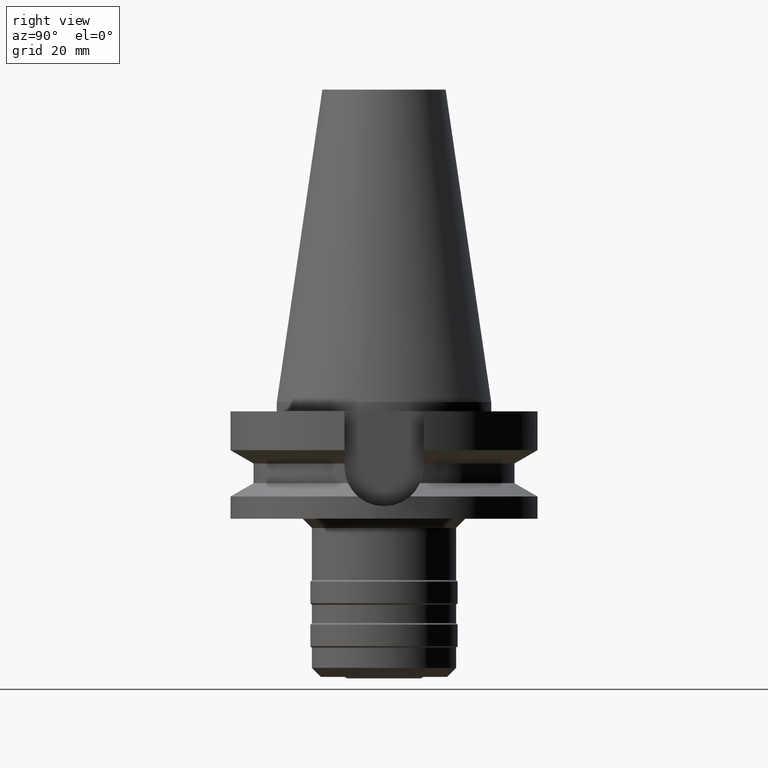
[diagram: clean part render]
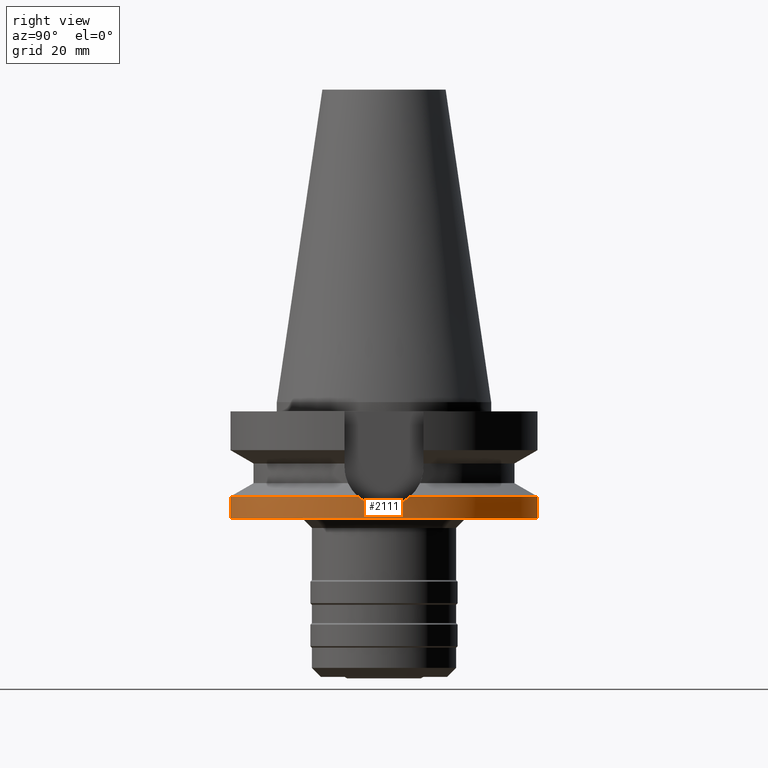
[diagram: same view with one face highlighted and labeled with its STEP entity id]
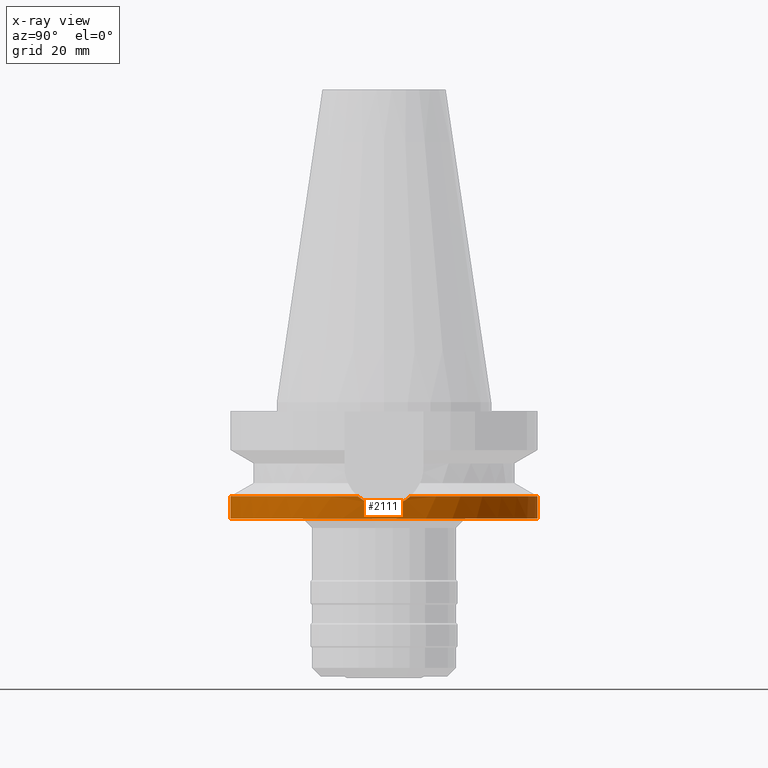
[diagram: x-ray of the same camera — body ghosted, the highlighted face saturated]
A machine part, right view. The second image highlights one B-rep face of the part: STEP entity #2111.
The next image is the same camera in x-ray: the body ghosted, the highlighted face saturated — about 0% of this face is hidden behind the body in this view.
In plain terms, the highlighted cylindrical surface (partial cylindrical patch) has radius 50 mm, axis along (0, 0, -1).
Its self-contained STEP definition (entity closure, byte-faithful):
#638=CARTESIAN_POINT('',(0.E0,2.588780868718E-14,-3.8E1));
#639=DIRECTION('',(0.E0,0.E0,1.E0));
#640=DIRECTION('',(0.E0,-1.E0,0.E0));
#641=AXIS2_PLACEMENT_3D('',#638,#639,#640);
#670=CARTESIAN_POINT('',(4.926250064874E1,-8.556052234130E0,-3.073730776427E1));
#671=CARTESIAN_POINT('',(4.936650737878E1,-7.957220966409E0,-3.127172594840E1));
#672=CARTESIAN_POINT('',(4.956431120434E1,-6.687649354383E0,-3.220428436589E1));
#673=CARTESIAN_POINT('',(4.980482601638E1,-4.595643036196E0,-3.322699401064E1));
#674=CARTESIAN_POINT('',(4.996456414175E1,-2.307238175675E0,-3.386328192616E1));
#675=CARTESIAN_POINT('',(5.000000025826E1,-7.762648577910E-1,
-3.400000117529E1));
#676=CARTESIAN_POINT('',(5.000000025826E1,3.974079033290E-14,
-3.400000117529E1));
#681=CARTESIAN_POINT('',(5.000000025826E1,3.974079033290E-14,
-3.400000117529E1));
#682=CARTESIAN_POINT('',(5.000000025826E1,7.763736931511E-1,-3.400000117529E1));
#683=CARTESIAN_POINT('',(4.996455383075E1,2.307506752341E0,-3.386324206884E1));
#684=CARTESIAN_POINT('',(4.980479670211E1,4.595956347196E0,-3.322687477829E1));
#685=CARTESIAN_POINT('',(4.956427869585E1,6.687874264253E0,-3.220413787670E1));
#686=CARTESIAN_POINT('',(4.936649346246E1,7.957301091268E0,-3.127165444214E1));
#687=CARTESIAN_POINT('',(4.926250064874E1,8.556052234130E0,-3.073730776427E1));
#692=DIRECTION('',(0.E0,2.152361642122E-14,-1.E0));
#693=VECTOR('',#692,7.262692235730E0);
#694=CARTESIAN_POINT('',(0.E0,5.E1,-3.073730776427E1));
#695=LINE('',#694,#693);
#750=CARTESIAN_POINT('',(0.E0,0.E0,-3.073730776427E1));
#751=DIRECTION('',(0.E0,0.E0,-1.E0));
#752=DIRECTION('',(9.852500129747E-1,-1.711210446826E-1,0.E0));
#753=AXIS2_PLACEMENT_3D('',#750,#751,#752);
#794=DIRECTION('',(0.E0,-2.054527022026E-14,-1.E0));
#795=VECTOR('',#794,7.262692235730E0);
#796=CARTESIAN_POINT('',(0.E0,-5.E1,-3.073730776427E1));
#797=LINE('',#796,#795);
#820=CARTESIAN_POINT('',(0.E0,0.E0,-3.073730776427E1));
#821=DIRECTION('',(0.E0,0.E0,-1.E0));
#822=DIRECTION('',(0.E0,1.E0,0.E0));
#823=AXIS2_PLACEMENT_3D('',#820,#821,#822);
#1380=CARTESIAN_POINT('',(0.E0,-5.E1,-3.8E1));
#1381=CARTESIAN_POINT('',(0.E0,5.E1,-3.8E1));
#1382=VERTEX_POINT('',#1380);
#1383=VERTEX_POINT('',#1381);
#1384=VERTEX_POINT('',#681);
#1385=VERTEX_POINT('',#687);
#1386=VERTEX_POINT('',#670);
#1387=CARTESIAN_POINT('',(0.E0,5.E1,-3.073730776427E1));
#1388=VERTEX_POINT('',#1387);
#1389=CARTESIAN_POINT('',(0.E0,-5.E1,-3.073730776427E1));
#1390=VERTEX_POINT('',#1389);
#2091=CARTESIAN_POINT('',(0.E0,2.588780868718E-14,1.1139E2));
#2092=DIRECTION('',(0.E0,0.E0,-1.E0));
#2093=DIRECTION('',(0.E0,-1.E0,0.E0));
#2094=AXIS2_PLACEMENT_3D('',#2091,#2092,#2093);
#2095=CYLINDRICAL_SURFACE('',#2094,5.E1);
#2097=ORIENTED_EDGE('',*,*,#2096,.T.);
#2099=ORIENTED_EDGE('',*,*,#2098,.T.);
#2101=ORIENTED_EDGE('',*,*,#2100,.F.);
#2103=ORIENTED_EDGE('',*,*,#2102,.T.);
#2104=ORIENTED_EDGE('',*,*,#2080,.F.);
#2106=ORIENTED_EDGE('',*,*,#2105,.F.);
#2108=ORIENTED_EDGE('',*,*,#2107,.F.);
#2109=EDGE_LOOP('',(#2097,#2099,#2101,#2103,#2104,#2106,#2108));
#2110=FACE_OUTER_BOUND('',#2109,.F.);
#642=CIRCLE('',#641,5.E1);
#677=B_SPLINE_CURVE_WITH_KNOTS('',3,(#670,#671,#672,#673,#674,#675,#676),
.UNSPECIFIED.,.F.,.F.,(4,1,1,1,4),(0.E0,2.5E-1,5.E-1,7.5E-1,1.E0),
.UNSPECIFIED.);
#688=B_SPLINE_CURVE_WITH_KNOTS('',3,(#681,#682,#683,#684,#685,#686,#687),
.UNSPECIFIED.,.F.,.F.,(4,1,1,1,4),(0.E0,2.5E-1,5.E-1,7.5E-1,1.E0),
.UNSPECIFIED.);
#754=CIRCLE('',#753,5.E1);
#824=CIRCLE('',#823,5.E1);
#2080=EDGE_CURVE('',#1382,#1383,#642,.T.);
#2096=EDGE_CURVE('',#1386,#1384,#677,.T.);
#2098=EDGE_CURVE('',#1384,#1385,#688,.T.);
#2100=EDGE_CURVE('',#1388,#1385,#824,.T.);
#2102=EDGE_CURVE('',#1388,#1383,#695,.T.);
#2105=EDGE_CURVE('',#1390,#1382,#797,.T.);
#2107=EDGE_CURVE('',#1386,#1390,#754,.T.);
#2111=ADVANCED_FACE('',(#2110),#2095,.T.);